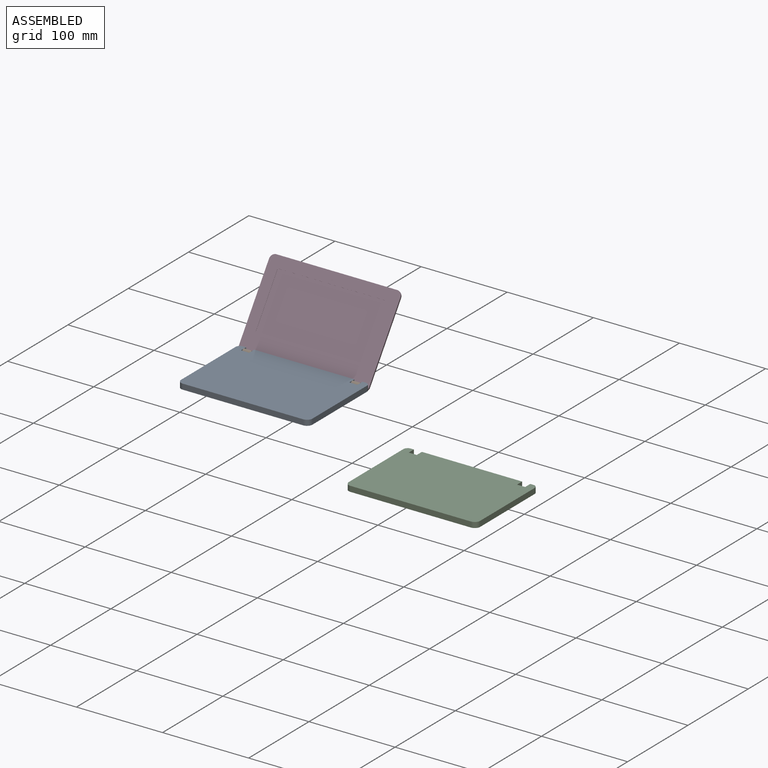
[diagram: assembled view]
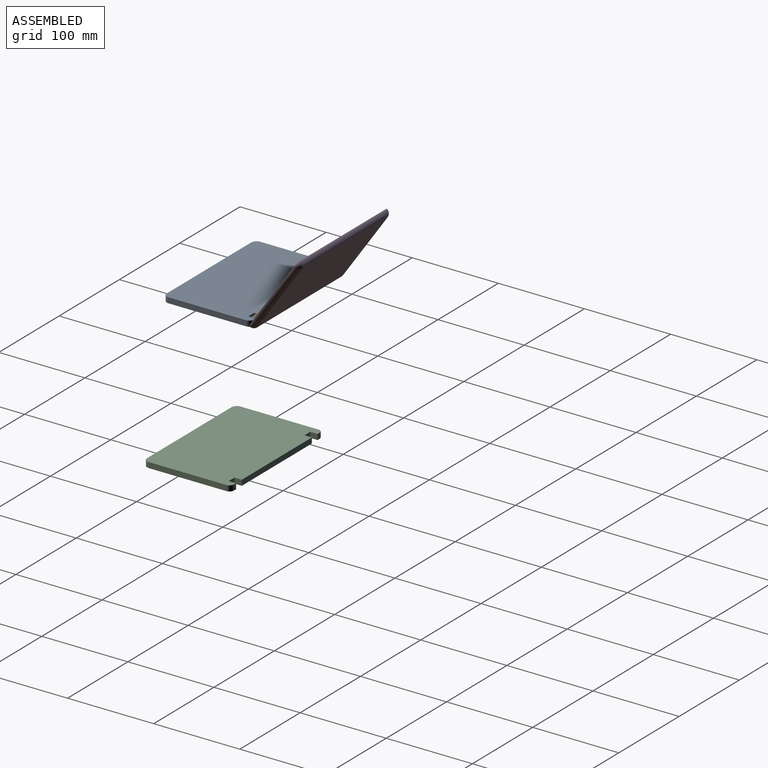
[diagram: assembled view, second angle]
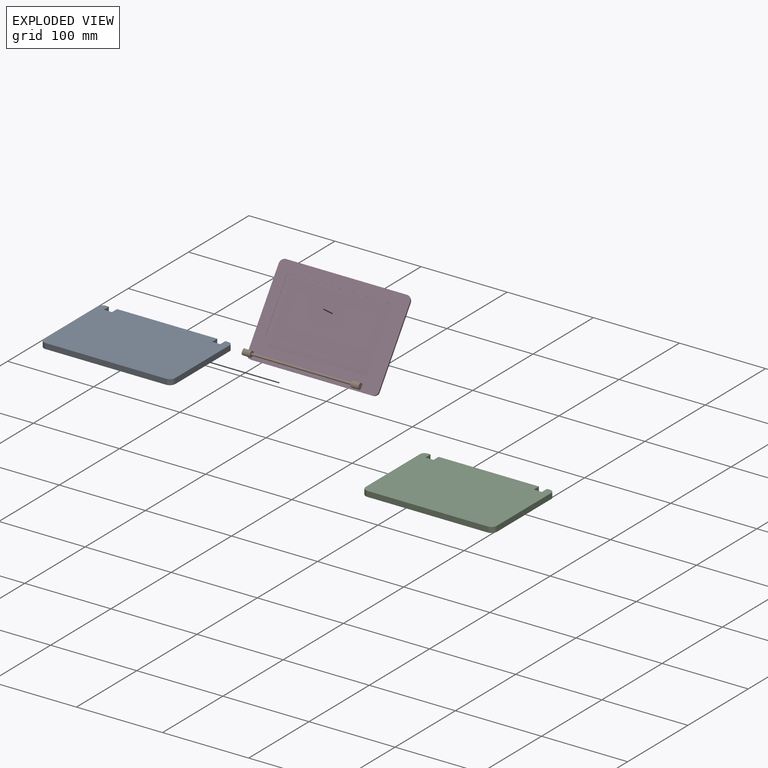
[diagram: exploded view]
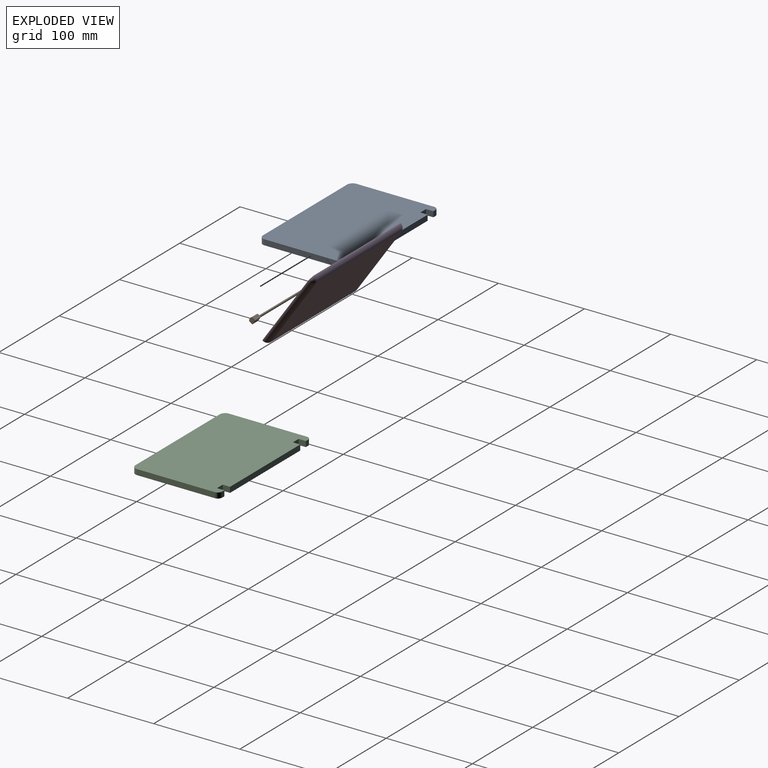
[diagram: exploded view, second angle]
ASSEMBLY  parts=3 mates=2
PART A: 18 faces, bbox 152.5x101.7x6.4 mm
  f0: plane 116.4x6.35mm, normal (0,1,0), area 739.1mm2, adj f2,f3,f11,f15
  f1: plane 6.35x3.58mm, normal (0,1,0), area 22.7mm2, adj f2,f3,f10,f16
  f2: plane 152.48x101.65mm, normal (0,0,1), area 15313mm2, adj f0,f1,f4,f5,f6,f7,f8,f9
  f3: plane 152.48x101.65mm, normal (0,0,-1), area 15313mm2, adj f0,f1,f4,f5,f6,f7,f8,f9
  f4: plane 90.22x6.35mm, normal (-1,0,0), area 572.9mm2, adj f2,f3,f5,f17
  f5: cylinder r=6.35mm len=6.35mm, axis (0,0,-1), area 63.3mm2, adj f2,f3,f4,f6
  f6: plane 139.78x6.35mm, normal (0,-1,0), area 887.6mm2, adj f2,f3,f5,f7
  f7: cylinder r=6.35mm len=6.35mm, axis (0,0,-1), area 63.3mm2, adj f2,f3,f6,f8
  f8: plane 90.22x6.35mm, normal (1,0,0), area 572.9mm2, adj f2,f3,f7,f16
  f9: plane 6.35x3.59mm, normal (0,1,0), area 22.8mm2, adj f2,f3,f13,f17
  f10: plane 8.46x6.35mm, normal (-1,0,0), area 53.7mm2, adj f1,f2,f3,f12
  f11: plane 8.46x6.35mm, normal (1,0,0), area 53.7mm2, adj f0,f2,f3,f12
  f12: plane 9.37x6.35mm, normal (0,1,0), area 59.5mm2, adj f2,f3,f10,f11
  f13: plane 8.46x6.35mm, normal (1,0,0), area 53.7mm2, adj f2,f3,f9,f14
  f14: plane 9.38x6.35mm, normal (0,1,0), area 59.6mm2, adj f2,f3,f13,f15
  f15: plane 8.46x6.35mm, normal (-1,0,0), area 53.7mm2, adj f0,f2,f3,f14
  f16: cylinder r=5.08mm len=6.35mm, axis (0,0,1), area 50.7mm2, adj f1,f2,f3,f8
  f17: cylinder r=5.08mm len=6.35mm, axis (0,0,-1), area 50.7mm2, adj f2,f3,f4,f9
PART B: 13 faces, bbox 6.4x5.5x135.5 mm
  f0: plane 9.35x4.23mm, normal (1,0,0), area 39.5mm2, adj f1,f3,f4,f5
  f1: cylinder r=4.67mm len=9.35mm, axis (0,0,-1), area 65.3mm2, adj f0,f2,f4,f5
  f2: plane 9.35x4.23mm, normal (-1,0,0), area 39.5mm2, adj f1,f3,f4,f5
  f3: plane 9.35x6.35mm, normal (0,-1,0), area 59.4mm2, adj f0,f2,f4,f5
  f4: plane 6.35x5.47mm, normal (0,0,1), area 27.4mm2, adj f0,f1,f2,f3,f6
  f5: plane 6.35x5.47mm, normal (0,0,-1), area 32.3mm2, adj f0,f1,f2,f3
  f6: cylinder r=1.25mm len=116.76mm, axis (0,0,-1), area 915.2mm2, adj f4,f12
  f7: plane 9.35x4.24mm, normal (-1,0,0), area 39.6mm2, adj f8,f10,f11,f12
  f8: plane 9.35x6.35mm, normal (0,-1,0), area 59.4mm2, adj f7,f9,f11,f12
  f9: plane 9.35x4.24mm, normal (1,0,0), area 39.6mm2, adj f8,f10,f11,f12
  f10: cylinder r=4.71mm len=9.35mm, axis (0,0,-1), area 65.1mm2, adj f7,f9,f11,f12
  f11: plane 6.35x5.47mm, normal (0,0,1), area 32.3mm2, adj f7,f8,f9,f10
  f12: plane 6.35x5.47mm, normal (0,0,-1), area 27.4mm2, adj f6,f7,f8,f9,f10
PART C: 25 faces, bbox 152.5x6.4x101.7 mm
  f0: plane 152.48x101.65mm, normal (0,-1,0), area 7306.6mm2, adj f2,f3,f4,f5,f6,f7,f8,f10
  f1: plane 139.78x90.44mm, normal (0,1,0), area 12641.2mm2, adj f2,f3,f11,f14
  f2: cylinder r=6.35mm len=90.44mm, axis (0,0,-1), area 902.1mm2, adj f0,f1,f10,f15
  f3: cylinder r=6.35mm len=90.44mm, axis (0,0,-1), area 902.1mm2, adj f0,f1,f12,f13
  f4: plane 140.21x0.22mm, normal (0,0,1), area 30.5mm2, adj f0,f10,f11,f12
  f5: plane 142.32x1.27mm, normal (0,0,-1), area 180.1mm2, adj f0,f6,f7,f9,f13,f14,f15
  f6: plane 6.35x0mm, normal (-1,0,0), area 0mm2, adj f0,f5,f8,f9
  f7: plane 6.35x0mm, normal (1,0,0), area 0mm2, adj f0,f5,f8,f9
  f8: plane 9.36x0mm, normal (0,0,1), area 0mm2, adj f0,f6,f7,f9
  f9: plane 9.36x6.35mm, normal (0,-1,0), area 59.5mm2, adj f5,f6,f7,f8
  f10: torus R=0.22mm, axis (0,0,1), area 62.4mm2, adj f0,f2,f4,f11
  f11: cylinder r=6.13mm len=139.78mm, axis (1,0,0), area 1346.4mm2, adj f1,f4,f10,f12
  f12: torus R=0.22mm, axis (0,0,1), area 62.4mm2, adj f0,f3,f4,f11
  f13: torus R=1.27mm, axis (0,0,1), area 56.5mm2, adj f0,f3,f5,f14
  f14: cylinder r=5.08mm len=139.78mm, axis (-1,0,0), area 1115.4mm2, adj f1,f5,f13,f15
  f15: torus R=1.27mm, axis (0,0,1), area 56.5mm2, adj f0,f2,f5,f14
  f16: plane 127.08x0.25mm, normal (0,0,-1), area 32.3mm2, adj f0,f17,f19,f20
  f17: plane 63.55x0.25mm, normal (1,0,0), area 16.1mm2, adj f0,f16,f18,f20
  f18: plane 127.08x0.25mm, normal (0,0,1), area 32.3mm2, adj f0,f17,f19,f20
  f19: plane 63.55x0.25mm, normal (-1,0,0), area 16.1mm2, adj f0,f16,f18,f20
  f20: plane 127.08x63.55mm, normal (0,-1,0), area 8075.8mm2, adj f16,f17,f18,f19
  f21: cylinder r=1.66mm len=3.32mm, axis (0,-1,0), area 0.3mm2, adj f23,f24
  f22: cylinder r=3.1mm len=6.21mm, axis (0,-1,0), area 0.5mm2, adj f0,f23
  f23: plane 6.21x6.21mm, normal (0,-1,0), area 21.6mm2, adj f21,f22
  f24: plane 3.32x3.32mm, normal (0,-1,0), area 8.7mm2, adj f21
PLACE A rot(axis=(0,0,1),0deg) t=(-17.94,-22.35,-11.3)mm fixed
PLACE B rot(axis=(0.69,0.22,0.69),155.6deg) t=(-85.37,-0.6,-12.19)mm
PLACE C rot(axis=(-1,0,0),34.7deg) t=(-17.91,-21.97,2.63)mm
MATE fastened C.f9 <-> B.f3  axis (0,-0.82,0.57) through (-85.37,1.21,-9.58)mm
MATE pin_slot B.f5 <-> A.f13  axis (-1,0,0) through (-85.37,-0.89,-8.13)mm
